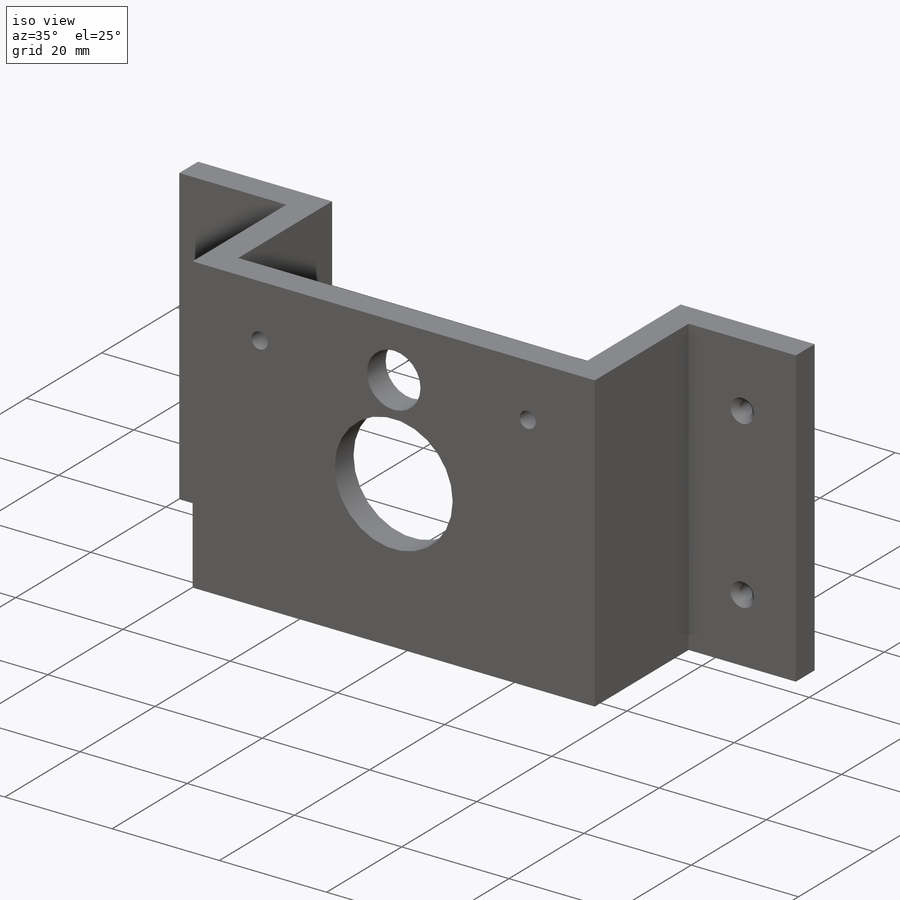
[diagram: iso view]
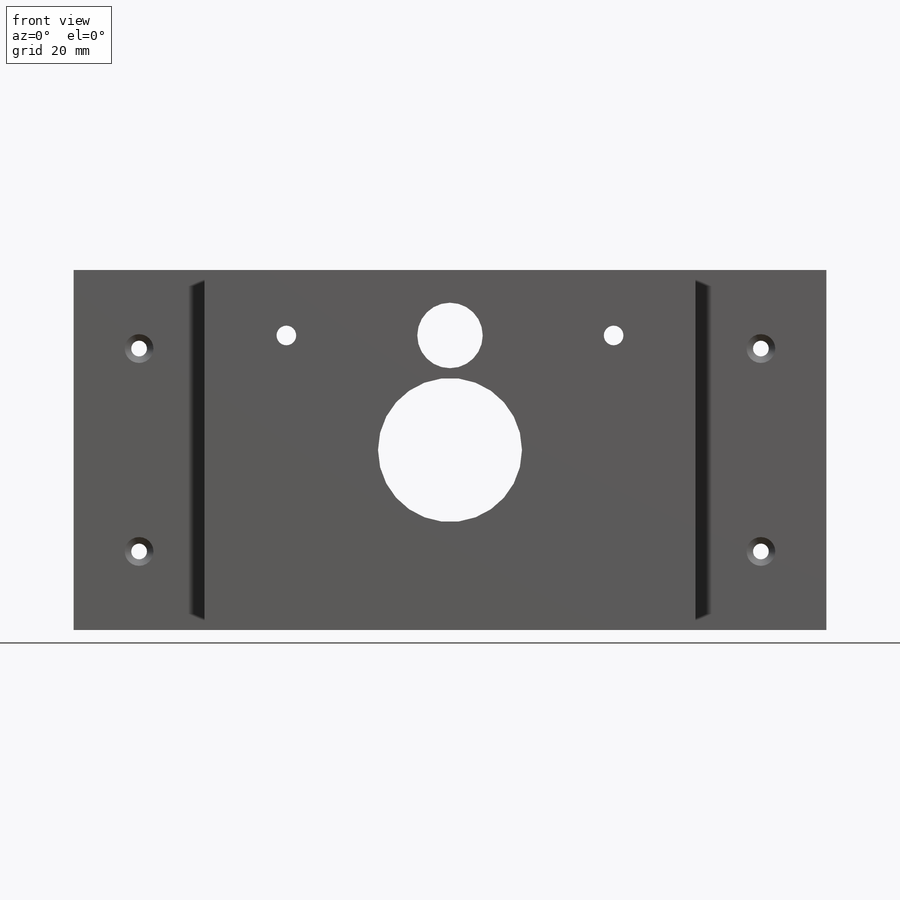
[diagram: front view]
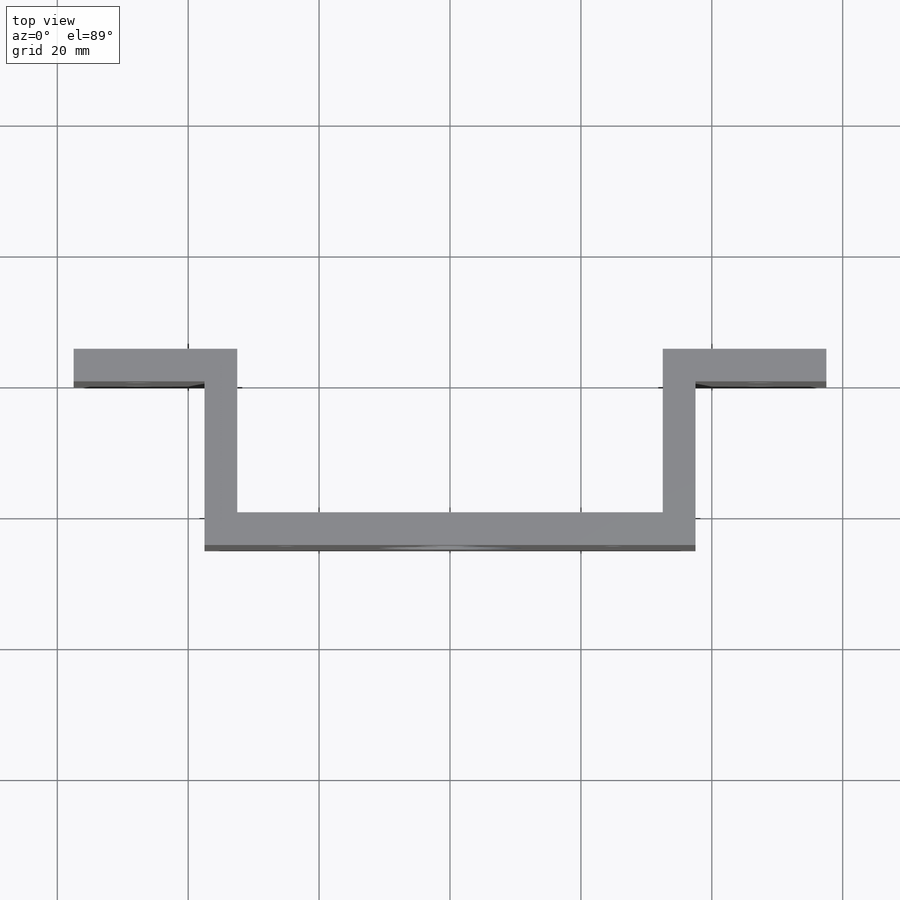
[diagram: top view]
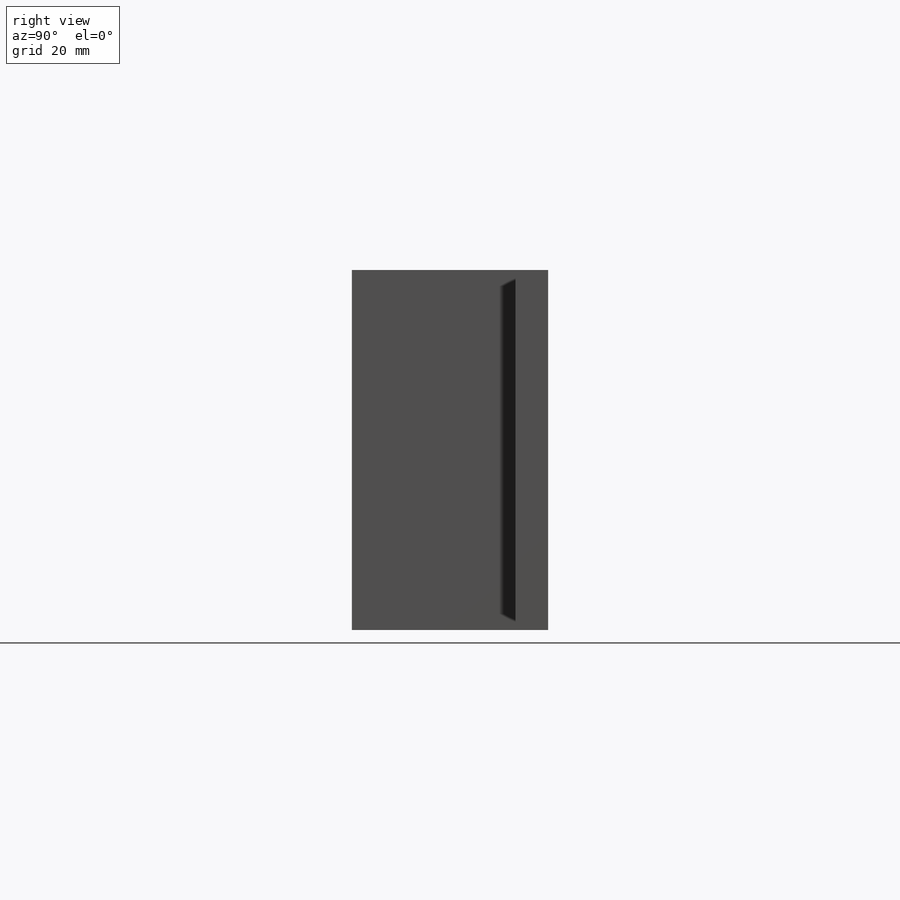
[diagram: right view]
SOLIDWORKS PART (.sldprt)
format: sldprt  version: not decoded by parser v0  size: 264,704 bytes
history: native  units: mm
features: sketch x7, extrude x4, plane x3, material x1, cut_extrude x1, hole x1 (+10 scaffold rows collapsed)
feature tree (27):
  scaffold x10  (default folders/planes/origin — collapsed)
  material  "Malzeme <belirli değil>"
  plane  "Ön Düzlem"
  plane  "Üst Düzlem"
  plane  "Sağ Düzlem"
  sketch  "Sketch1"  dims[D1=75.0mm D2=55.0mm]
  extrude  "Boss-Extrude1"  Depth=5mm
  sketch  "Sketch2"  dims[D1=5.0mm D2=5.0mm]
  extrude  "Boss-Extrude2"  Depth=25mm
  sketch  "Sketch3"  dims[c1.D1=30.0mm c1.D2=3.0mm c1.D3=3.0mm c1.D6=10.0mm c1.D8=22.0mm c1.D9=27.0mm c1.D10=8.0mm c1.D11=34.0mm c1.D4=50.0mm c1.D5=12.5mm c2.D1=10.0mm c2.D7=10.0mm c2.D9=17.5mm]
  cut_extrude  "Cut-Extrude1"  [1 undecoded]
  sketch  "Sketch4"  dims[D1=5.0mm]
  extrude  "Boss-Extrude3"  Depth=20mm
  sketch  "Sketch5"  dims[D1=5.0mm]
  extrude  "Boss-Extrude4"  Depth=20mm
  hole  "M2 Düz Başlı Makine Vidası İçin Havşa1"  Diameter=2.4mm Depth=5.000025mm
  sketch  "Sketch9"  dims[D1=10.0mm D2=10.0mm D3=12.0mm D4=12.0mm D5=12.0mm D6=12.0mm D7=10.0mm D8=10.0mm]
  sketch  "Sketch8"  dims[hole-wizard template sketch: 55 standard entries collapsed; hole parameters kept: c17.Thru Hole Depth=~5.000025mm c17.Near C'Sink Dia.=4.4mm c17.D4=~3.666174mm c17.Near C'Sink Angle=90.0deg]
decode coverage: 12 of 13 modeling features carry decoded parameters
note: ~ marks probable driven/reference dimensions
note: 1 parameter value undecoded
note: suppression state not decoded; provenance and decode notes live in map.json
